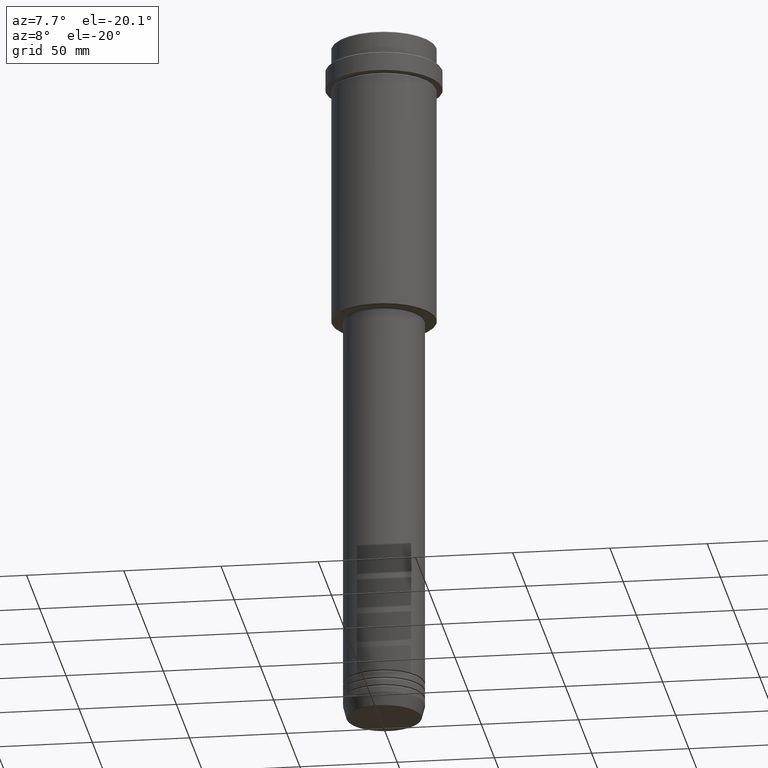
[diagram: clean part render]
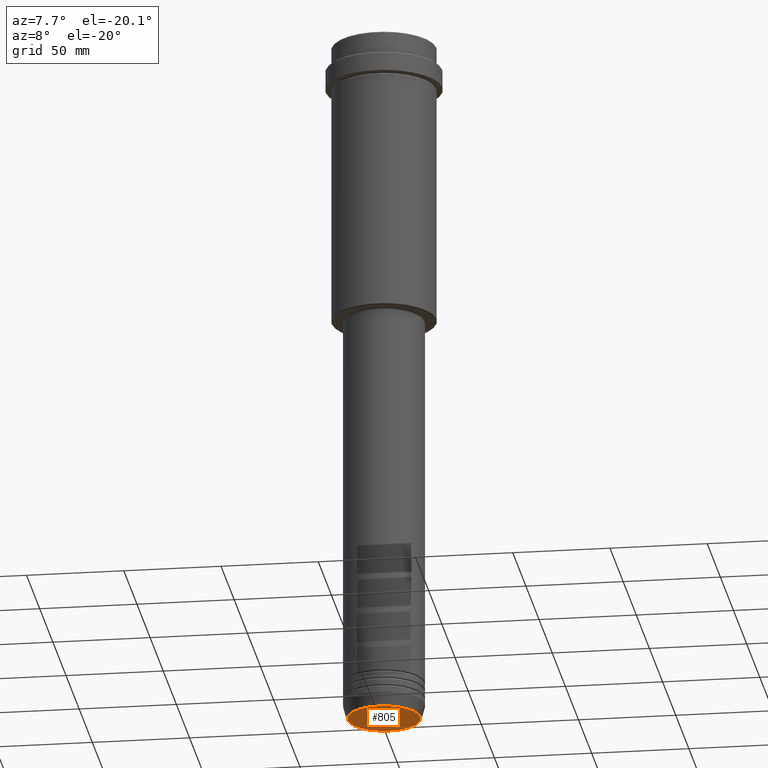
[diagram: same view with one face highlighted and labeled with its STEP entity id]
A machine part, auxiliary view. The second image highlights one B-rep face of the part: STEP entity #805.
In plain terms, the highlighted planar face has unit normal (0, -0, 1).
Its self-contained STEP definition (entity closure, byte-faithful):
#67 = FACE_OUTER_BOUND ( 'NONE', #1057, .T. ) ;
#159 = DIRECTION ( 'NONE',  ( 1.000000000000000000, 0.000000000000000000, 0.000000000000000000 ) ) ;
#169 = CARTESIAN_POINT ( 'NONE',  ( 18.74069215899266183, 0.000000000000000000, -363.0000000000000568 ) ) ;
#264 = DIRECTION ( 'NONE',  ( 0.000000000000000000, 0.000000000000000000, -1.000000000000000000 ) ) ;
#284 = DIRECTION ( 'NONE',  ( 1.000000000000000000, 0.000000000000000000, 0.000000000000000000 ) ) ;
#299 = CIRCLE ( 'NONE', #429, 18.74069215899266183 ) ;
#373 = VERTEX_POINT ( 'NONE', #1224 ) ;
#424 = VERTEX_POINT ( 'NONE', #169 ) ;
#429 = AXIS2_PLACEMENT_3D ( 'NONE', #1381, #946, #500 ) ;
#499 = PLANE ( 'NONE',  #864 ) ;
#500 = DIRECTION ( 'NONE',  ( 1.000000000000000000, 0.000000000000000000, 0.000000000000000000 ) ) ;
#538 = EDGE_CURVE ( 'NONE', #373, #424, #299, .T. ) ;
#545 = CARTESIAN_POINT ( 'NONE',  ( 0.000000000000000000, 0.000000000000000000, -363.0000000000000568 ) ) ;
#570 = AXIS2_PLACEMENT_3D ( 'NONE', #545, #264, #159 ) ;
#702 = EDGE_CURVE ( 'NONE', #424, #373, #1026, .T. ) ;
#805 = ADVANCED_FACE ( 'NONE', ( #67 ), #499, .F. ) ;
#840 = ORIENTED_EDGE ( 'NONE', *, *, #538, .T. ) ;
#864 = AXIS2_PLACEMENT_3D ( 'NONE', #1063, #1170, #284 ) ;
#946 = DIRECTION ( 'NONE',  ( 0.000000000000000000, 0.000000000000000000, -1.000000000000000000 ) ) ;
#1026 = CIRCLE ( 'NONE', #570, 18.74069215899266183 ) ;
#1057 = EDGE_LOOP ( 'NONE', ( #1396, #840 ) ) ;
#1063 = CARTESIAN_POINT ( 'NONE',  ( 0.000000000000000000, 0.000000000000000000, -363.0000000000000568 ) ) ;
#1170 = DIRECTION ( 'NONE',  ( 0.000000000000000000, -0.000000000000000000, 1.000000000000000000 ) ) ;
#1224 = CARTESIAN_POINT ( 'NONE',  ( -18.74069215899266183, 2.324645815916093501E-15, -363.0000000000000568 ) ) ;
#1381 = CARTESIAN_POINT ( 'NONE',  ( 0.000000000000000000, 0.000000000000000000, -363.0000000000000568 ) ) ;
#1396 = ORIENTED_EDGE ( 'NONE', *, *, #702, .T. ) ;